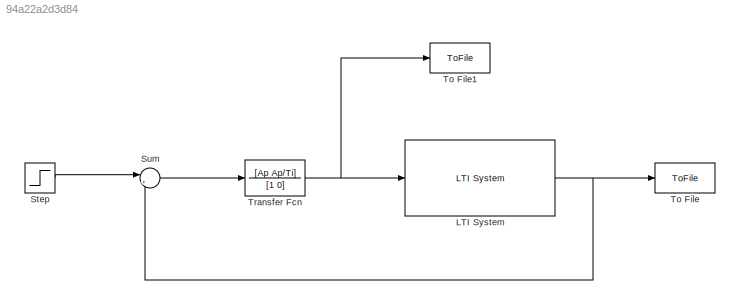
MODEL slx_94a22a2d3d84
KIND model
CONFIG AbsTol = auto
CONFIG EnableMultiTasking = off
CONFIG FixedStep = auto
CONFIG MaxStep = auto
CONFIG MinStep = auto
CONFIG RelTol = 1e-3
CONFIG SampleTimeConstraint = Unconstrained
CONFIG SolverName = VariableStepAuto
CONFIG StartTime = 0.0
CONFIG StopTime = 10.0
WORKSPACE source: mxarray member
WORKSPACE A = 1
WORKSPACE Ap = 1.0472
WORKSPACE T = 2
WORKSPACE Th = 1
WORKSPACE Ti = 2
BLOCK [Reference] LTI System  REF=cstblocks/LTI System
  Ports = [1, 1]
  SourceBlock = cstblocks/LTI System
  SourceProductBaseCode = CT
  SourceType = LTI Block
BLOCK [Step] Step
  SampleTime = 0
  Time = 0
BLOCK [Sum] Sum
  Inputs = |+-
  Ports = [2, 1]
BLOCK [ToFile] To File
  Filename = output.mat
  MatrixName = y
  Ports = [1]
BLOCK [ToFile] To File1
  Filename = outputu.mat
  MatrixName = u
  Ports = [1]
BLOCK [TransferFcn] Transfer Fcn
  Denominator = [1 0]
  Numerator = [Ap Ap/Ti]
NET LTI System:1 -> Sum:2, To File:1
LINE Step:1 -> Sum:1
LINE Sum:1 -> Transfer Fcn:1
NET Transfer Fcn:1 -> LTI System:1, To File1:1
note: NET lines group one-source signal fan-out (src -> all destinations, sorted); 1:1 wires keep LINE
